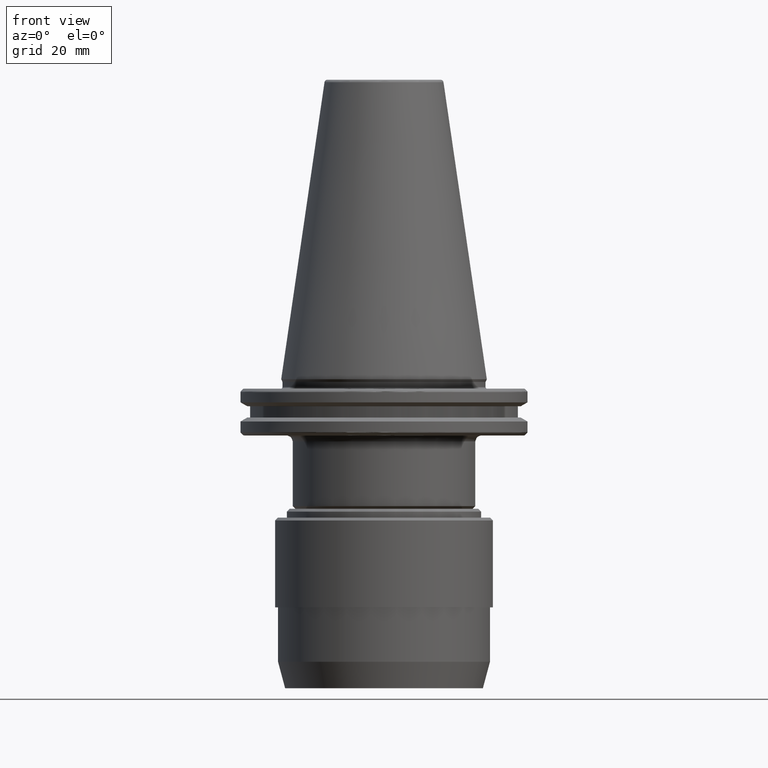
[diagram: clean part render]
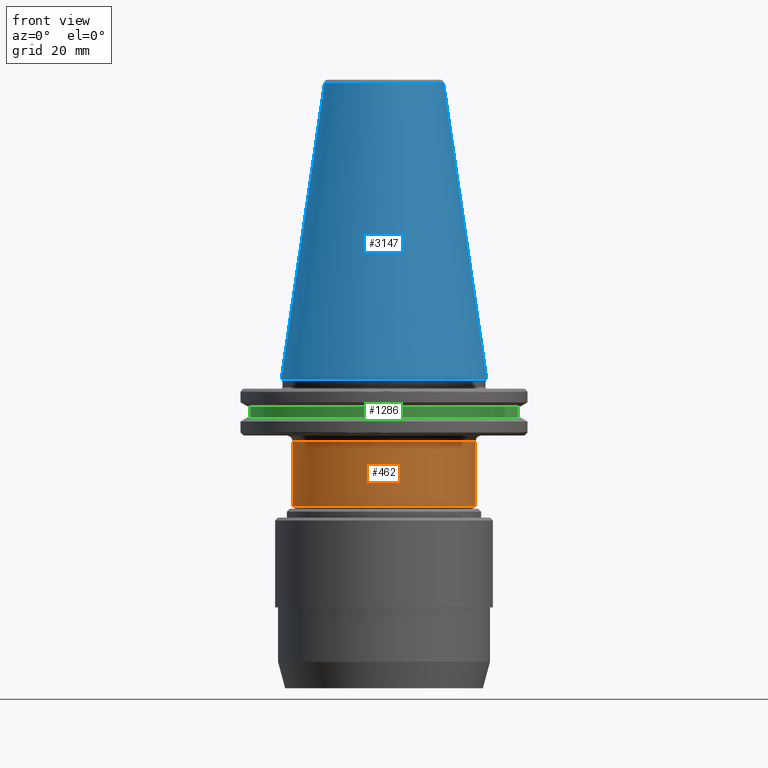
[diagram: same view with three faces highlighted in distinct colors, each labeled with its STEP entity id]
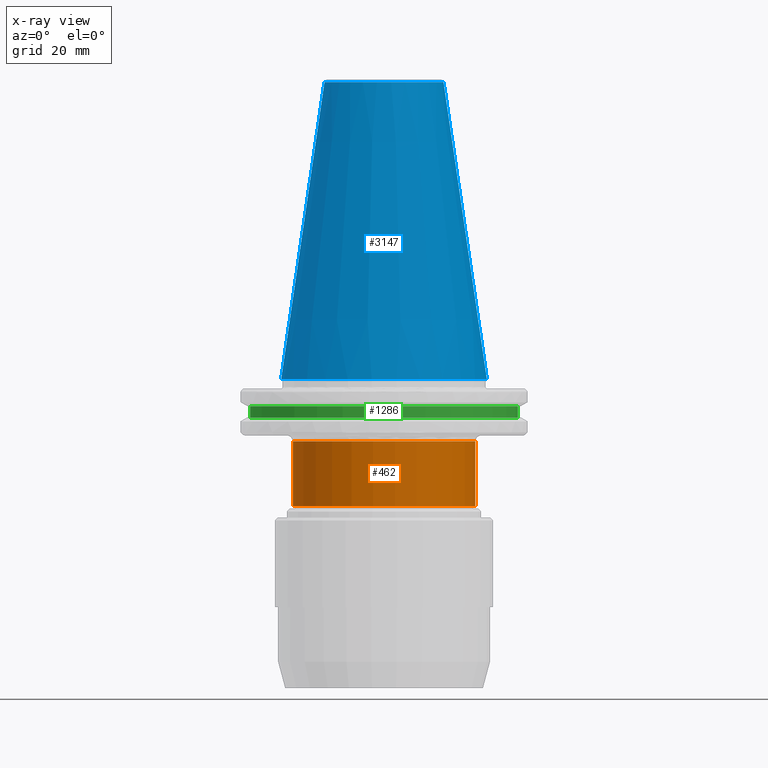
[diagram: x-ray of the same camera — body ghosted, the three highlighted faces saturated]
A machine part, front view with three faces highlighted in distinct colors.
The next image is the same camera in x-ray (body ghosted, the three faces saturated) — at least one of them is partly hidden behind the body in this view.
Their STEP definitions:

[orange] entity #462 — the highlighted cylindrical surface (partial cylindrical patch) has radius 31 mm, axis along (0, 0, 1).
#16 = CARTESIAN_POINT ( 'NONE',  ( -31.00000000000000000, 3.796405077356795100E-015, -21.10000000000000900 ) ) ;
#142 = VECTOR ( 'NONE', #2325, 1000.000000000000000 ) ;
#162 = ORIENTED_EDGE ( 'NONE', *, *, #3276, .T. ) ;
#172 = ORIENTED_EDGE ( 'NONE', *, *, #3011, .T. ) ;
#271 = VERTEX_POINT ( 'NONE', #834 ) ;
#462 = ADVANCED_FACE ( 'NONE', ( #1188 ), #732, .T. ) ;
#501 = AXIS2_PLACEMENT_3D ( 'NONE', #2965, #2073, #2774 ) ;
#732 = CYLINDRICAL_SURFACE ( 'NONE', #501, 31.00000000000000000 ) ;
#834 = CARTESIAN_POINT ( 'NONE',  ( 31.00000000000000000, 0.0000000000000000000, -43.10000000000001600 ) ) ;
#920 = AXIS2_PLACEMENT_3D ( 'NONE', #2815, #2804, #2793 ) ;
#986 = EDGE_CURVE ( 'NONE', #2972, #2753, #2216, .T. ) ;
#1079 = CARTESIAN_POINT ( 'NONE',  ( 31.00000000000000000, 0.0000000000000000000, -21.10000000000000900 ) ) ;
#1101 = VECTOR ( 'NONE', #3040, 1000.000000000000000 ) ;
#1188 = FACE_OUTER_BOUND ( 'NONE', #3338, .T. ) ;
#1214 = DIRECTION ( 'NONE',  ( -1.000000000000000000, 0.0000000000000000000, 0.0000000000000000000 ) ) ;
#1217 = DIRECTION ( 'NONE',  ( 0.0000000000000000000, 0.0000000000000000000, -1.000000000000000000 ) ) ;
#1224 = CARTESIAN_POINT ( 'NONE',  ( 0.0000000000000000000, 0.0000000000000000000, -21.10000000000000900 ) ) ;
#1244 = VERTEX_POINT ( 'NONE', #1079 ) ;
#1328 = ORIENTED_EDGE ( 'NONE', *, *, #1887, .T. ) ;
#1812 = CIRCLE ( 'NONE', #2979, 31.00000000000000000 ) ;
#1887 = EDGE_CURVE ( 'NONE', #271, #1244, #2745, .T. ) ;
#2063 = ORIENTED_EDGE ( 'NONE', *, *, #986, .F. ) ;
#2073 = DIRECTION ( 'NONE',  ( 0.0000000000000000000, 0.0000000000000000000, 1.000000000000000000 ) ) ;
#2216 = LINE ( 'NONE', #2241, #142 ) ;
#2241 = CARTESIAN_POINT ( 'NONE',  ( -31.00000000000000000, 3.796405077356795100E-015, 0.0000000000000000000 ) ) ;
#2325 = DIRECTION ( 'NONE',  ( 0.0000000000000000000, 0.0000000000000000000, 1.000000000000000000 ) ) ;
#2735 = CIRCLE ( 'NONE', #920, 31.00000000000000000 ) ;
#2745 = LINE ( 'NONE', #2953, #1101 ) ;
#2753 = VERTEX_POINT ( 'NONE', #16 ) ;
#2774 = DIRECTION ( 'NONE',  ( 1.000000000000000000, 0.0000000000000000000, 0.0000000000000000000 ) ) ;
#2793 = DIRECTION ( 'NONE',  ( 1.000000000000000000, 0.0000000000000000000, 0.0000000000000000000 ) ) ;
#2804 = DIRECTION ( 'NONE',  ( 0.0000000000000000000, 0.0000000000000000000, 1.000000000000000000 ) ) ;
#2815 = CARTESIAN_POINT ( 'NONE',  ( 0.0000000000000000000, 0.0000000000000000000, -43.10000000000001600 ) ) ;
#2953 = CARTESIAN_POINT ( 'NONE',  ( 31.00000000000000000, 0.0000000000000000000, 0.0000000000000000000 ) ) ;
#2965 = CARTESIAN_POINT ( 'NONE',  ( 0.0000000000000000000, 0.0000000000000000000, 0.0000000000000000000 ) ) ;
#2972 = VERTEX_POINT ( 'NONE', #3075 ) ;
#2979 = AXIS2_PLACEMENT_3D ( 'NONE', #1224, #1217, #1214 ) ;
#3011 = EDGE_CURVE ( 'NONE', #2972, #271, #2735, .T. ) ;
#3040 = DIRECTION ( 'NONE',  ( 0.0000000000000000000, 0.0000000000000000000, 1.000000000000000000 ) ) ;
#3075 = CARTESIAN_POINT ( 'NONE',  ( -31.00000000000000000, 3.796405077356795100E-015, -43.10000000000001600 ) ) ;
#3276 = EDGE_CURVE ( 'NONE', #1244, #2753, #1812, .T. ) ;
#3338 = EDGE_LOOP ( 'NONE', ( #2063, #172, #1328, #162 ) ) ;

[blue] entity #3147 — the highlighted conical surface has half-angle 8.297 deg.
#2 = DIRECTION ( 'NONE',  ( -1.000000000000000000, 0.0000000000000000000, 0.0000000000000000000 ) ) ;
#7 = DIRECTION ( 'NONE',  ( -0.0000000000000000000, -0.0000000000000000000, 1.000000000000000000 ) ) ;
#12 = CARTESIAN_POINT ( 'NONE',  ( 0.0000000000000000000, 0.0000000000000000000, 0.0000000000000000000 ) ) ;
#246 = VERTEX_POINT ( 'NONE', #3037 ) ;
#260 = FACE_OUTER_BOUND ( 'NONE', #1509, .T. ) ;
#771 = AXIS2_PLACEMENT_3D ( 'NONE', #1776, #2585, #1768 ) ;
#847 = DIRECTION ( 'NONE',  ( -0.1443082272673069400, 0.0000000000000000000, -0.9895327864921743500 ) ) ;
#858 = ORIENTED_EDGE ( 'NONE', *, *, #1663, .T. ) ;
#859 = CARTESIAN_POINT ( 'NONE',  ( -34.92499999999999700, 0.0000000000000000000, -1.387778780781445700E-014 ) ) ;
#1097 = CARTESIAN_POINT ( 'NONE',  ( 34.92500000000000400, 0.0000000000000000000, 0.0000000000000000000 ) ) ;
#1108 = DIRECTION ( 'NONE',  ( 0.1443082272673069400, 1.767266086135362400E-017, -0.9895327864921743500 ) ) ;
#1111 = CARTESIAN_POINT ( 'NONE',  ( 34.92499999999999700, 4.277078946022130900E-015, -1.387778780781445700E-014 ) ) ;
#1178 = VECTOR ( 'NONE', #847, 1000.000000000000000 ) ;
#1208 = EDGE_CURVE ( 'NONE', #246, #1241, #2084, .T. ) ;
#1241 = VERTEX_POINT ( 'NONE', #1097 ) ;
#1495 = AXIS2_PLACEMENT_3D ( 'NONE', #3144, #3141, #3139 ) ;
#1509 = EDGE_LOOP ( 'NONE', ( #2608, #2101, #2140, #858 ) ) ;
#1663 = EDGE_CURVE ( 'NONE', #2933, #1241, #1817, .T. ) ;
#1752 = VERTEX_POINT ( 'NONE', #3381 ) ;
#1768 = DIRECTION ( 'NONE',  ( -1.000000000000000000, 0.0000000000000000000, 0.0000000000000000000 ) ) ;
#1776 = CARTESIAN_POINT ( 'NONE',  ( 0.0000000000000000000, 0.0000000000000000000, -1.387778780781445700E-014 ) ) ;
#1817 = CIRCLE ( 'NONE', #2396, 34.92499999999999700 ) ;
#1862 = EDGE_CURVE ( 'NONE', #246, #1752, #2316, .T. ) ;
#2084 = LINE ( 'NONE', #1111, #2743 ) ;
#2101 = ORIENTED_EDGE ( 'NONE', *, *, #1862, .T. ) ;
#2140 = ORIENTED_EDGE ( 'NONE', *, *, #3421, .T. ) ;
#2316 = CIRCLE ( 'NONE', #1495, 20.21110778703758000 ) ;
#2396 = AXIS2_PLACEMENT_3D ( 'NONE', #12, #7, #2 ) ;
#2398 = LINE ( 'NONE', #859, #1178 ) ;
#2585 = DIRECTION ( 'NONE',  ( 0.0000000000000000000, 0.0000000000000000000, -1.000000000000000000 ) ) ;
#2608 = ORIENTED_EDGE ( 'NONE', *, *, #1208, .F. ) ;
#2743 = VECTOR ( 'NONE', #1108, 1000.000000000000000 ) ;
#2933 = VERTEX_POINT ( 'NONE', #3099 ) ;
#3037 = CARTESIAN_POINT ( 'NONE',  ( 20.21110778703758000, 3.376112895941951000E-015, 100.8943082272673000 ) ) ;
#3099 = CARTESIAN_POINT ( 'NONE',  ( -34.92500000000000400, 4.277078946022131700E-015, 0.0000000000000000000 ) ) ;
#3121 = CONICAL_SURFACE ( 'NONE', #771, 34.92499999999999700, 0.1448138465474189400 ) ;
#3139 = DIRECTION ( 'NONE',  ( -1.000000000000000000, 0.0000000000000000000, 0.0000000000000000000 ) ) ;
#3141 = DIRECTION ( 'NONE',  ( 0.0000000000000000000, 0.0000000000000000000, -1.000000000000000000 ) ) ;
#3144 = CARTESIAN_POINT ( 'NONE',  ( 0.0000000000000000000, 0.0000000000000000000, 100.8943082272673000 ) ) ;
#3147 = ADVANCED_FACE ( 'NONE', ( #260 ), #3121, .T. ) ;
#3381 = CARTESIAN_POINT ( 'NONE',  ( -20.21110778703758000, 0.0000000000000000000, 100.8943082272673000 ) ) ;
#3421 = EDGE_CURVE ( 'NONE', #1752, #2933, #2398, .T. ) ;

[green] entity #1286 — the highlighted cylindrical surface (partial cylindrical patch) has radius 45.5 mm, axis along (0, 0, 1).
#14 = DIRECTION ( 'NONE',  ( 0.0000000000000000000, 0.0000000000000000000, 1.000000000000000000 ) ) ;
#17 = CARTESIAN_POINT ( 'NONE',  ( 45.50000000000000000, 0.0000000000000000000, 113.5216080541959500 ) ) ;
#176 = VERTEX_POINT ( 'NONE', #3262 ) ;
#190 = DIRECTION ( 'NONE',  ( 1.000000000000000000, 0.0000000000000000000, 0.0000000000000000000 ) ) ;
#195 = DIRECTION ( 'NONE',  ( 0.0000000000000000000, 0.0000000000000000000, 1.000000000000000000 ) ) ;
#203 = CARTESIAN_POINT ( 'NONE',  ( 0.0000000000000000000, 0.0000000000000000000, -13.00000000000001100 ) ) ;
#327 = DIRECTION ( 'NONE',  ( 1.000000000000000000, 0.0000000000000000000, 0.0000000000000000000 ) ) ;
#328 = DIRECTION ( 'NONE',  ( -0.0000000000000000000, -0.0000000000000000000, -1.000000000000000000 ) ) ;
#330 = CARTESIAN_POINT ( 'NONE',  ( 0.0000000000000000000, 0.0000000000000000000, -9.199999999999999300 ) ) ;
#405 = CARTESIAN_POINT ( 'NONE',  ( -45.50000000000000000, 5.572142936120457100E-015, -9.199999999999999300 ) ) ;
#554 = VECTOR ( 'NONE', #14, 1000.000000000000000 ) ;
#706 = AXIS2_PLACEMENT_3D ( 'NONE', #203, #195, #190 ) ;
#973 = LINE ( 'NONE', #1272, #3301 ) ;
#978 = DIRECTION ( 'NONE',  ( 0.0000000000000000000, 0.0000000000000000000, 1.000000000000000000 ) ) ;
#989 = CARTESIAN_POINT ( 'NONE',  ( 0.0000000000000000000, 0.0000000000000000000, 113.5216080541959500 ) ) ;
#1053 = DIRECTION ( 'NONE',  ( 1.000000000000000000, 0.0000000000000000000, 0.0000000000000000000 ) ) ;
#1092 = EDGE_CURVE ( 'NONE', #176, #2536, #973, .T. ) ;
#1272 = CARTESIAN_POINT ( 'NONE',  ( -45.50000000000000000, 5.572142936120457100E-015, 113.5216080541959500 ) ) ;
#1276 = DIRECTION ( 'NONE',  ( 0.0000000000000000000, 0.0000000000000000000, 1.000000000000000000 ) ) ;
#1286 = ADVANCED_FACE ( 'NONE', ( #2356 ), #1767, .T. ) ;
#1294 = CARTESIAN_POINT ( 'NONE',  ( 45.50000000000000000, 0.0000000000000000000, -9.199999999999999300 ) ) ;
#1369 = EDGE_CURVE ( 'NONE', #2285, #2536, #2872, .T. ) ;
#1666 = EDGE_CURVE ( 'NONE', #3056, #2285, #3309, .T. ) ;
#1767 = CYLINDRICAL_SURFACE ( 'NONE', #2685, 45.50000000000000000 ) ;
#1902 = EDGE_LOOP ( 'NONE', ( #3198, #3395, #2725, #2646 ) ) ;
#2285 = VERTEX_POINT ( 'NONE', #1294 ) ;
#2356 = FACE_OUTER_BOUND ( 'NONE', #1902, .T. ) ;
#2536 = VERTEX_POINT ( 'NONE', #405 ) ;
#2646 = ORIENTED_EDGE ( 'NONE', *, *, #1369, .T. ) ;
#2653 = EDGE_CURVE ( 'NONE', #176, #3056, #3295, .T. ) ;
#2685 = AXIS2_PLACEMENT_3D ( 'NONE', #989, #978, #1053 ) ;
#2725 = ORIENTED_EDGE ( 'NONE', *, *, #1666, .T. ) ;
#2746 = CARTESIAN_POINT ( 'NONE',  ( 45.50000000000000000, 0.0000000000000000000, -13.00000000000001100 ) ) ;
#2872 = CIRCLE ( 'NONE', #2929, 45.50000000000000000 ) ;
#2929 = AXIS2_PLACEMENT_3D ( 'NONE', #330, #328, #327 ) ;
#3056 = VERTEX_POINT ( 'NONE', #2746 ) ;
#3198 = ORIENTED_EDGE ( 'NONE', *, *, #1092, .F. ) ;
#3262 = CARTESIAN_POINT ( 'NONE',  ( -45.50000000000000000, 5.572142936120457100E-015, -13.00000000000001100 ) ) ;
#3295 = CIRCLE ( 'NONE', #706, 45.50000000000000000 ) ;
#3301 = VECTOR ( 'NONE', #1276, 1000.000000000000000 ) ;
#3309 = LINE ( 'NONE', #17, #554 ) ;
#3395 = ORIENTED_EDGE ( 'NONE', *, *, #2653, .T. ) ;